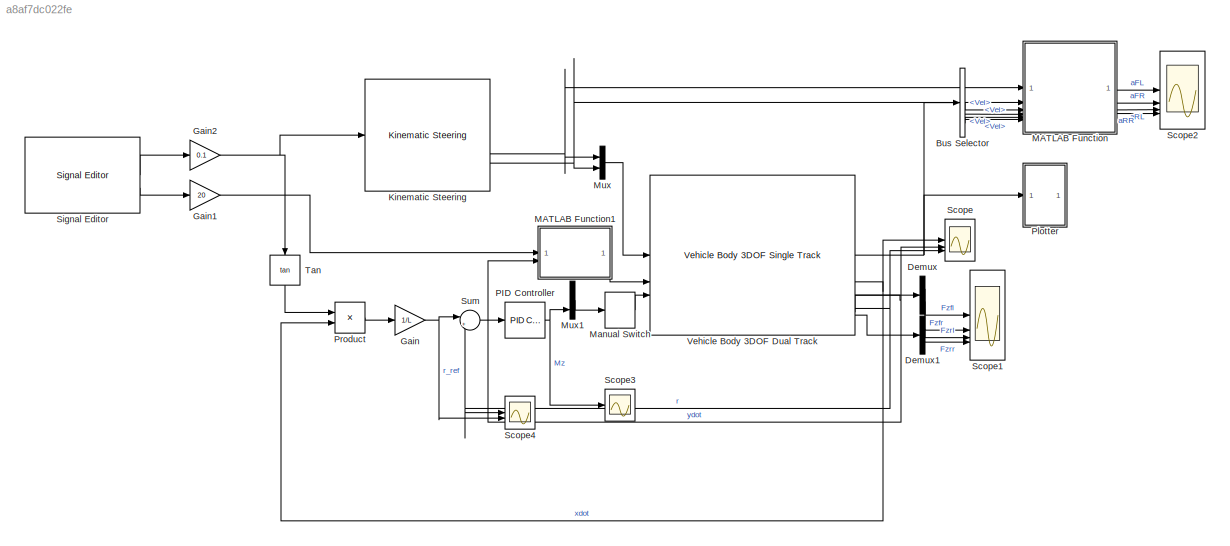
MODEL slx_a8af7dc022fe
KIND model
CONFIG AbsTol = auto
CONFIG EnableMultiTasking = off
CONFIG FixedStep = auto
CONFIG MaxStep = auto
CONFIG MinStep = auto
CONFIG RelTol = 1e-3
CONFIG SampleTimeConstraint = Unconstrained
CONFIG SolverName = VariableStepAuto
CONFIG StartTime = 0.0
CONFIG StopTime = 50
BLOCK [BusSelector] Bus Selector
  OutputSignals = BdyFrm.FrntAxl.Lft.Vel,BdyFrm.FrntAxl.Rght.Vel,BdyFrm.RearAxl.Lft.Vel,BdyFrm.RearAxl.Rght.Vel
BLOCK [Demux] Demux
  Outputs = 2
BLOCK [Demux] Demux1
  Outputs = 2
BLOCK [Gain] Gain
  Gain = 1/L
BLOCK [Gain] Gain1
  Gain = 20
BLOCK [Gain] Gain2
  Gain = 0.1
BLOCK [Reference] Kinematic Steering  REF=vehdynlibsteering/Kinematic Steering
  SourceBlock = vehdynlibsteering/Kinematic Steering
  SourceType = Kinematic Steering
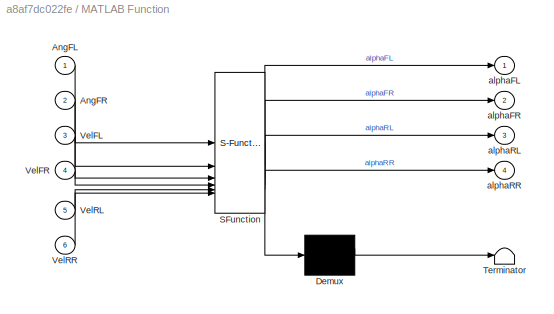
BLOCK [SubSystem] MATLAB Function
  ErrorFcn = Stateflow.Translate.translate
  PermitHierarchicalResolution = ExplicitOnly
  SFBlockType = MATLAB Function
  TreatAsAtomicUnit = on
BLOCK [Demux] MATLAB Function/ Demux 
  Outputs = 1
BLOCK [S-Function] MATLAB Function/ SFunction 
  EnableBusSupport = on
  FunctionName = sf_sfun
  PortCounts = [6 5]
  SFcnIsStateOwnerBlock = off
  SFunctionDeploymentMode = off
  Tag = Stateflow S-Function 2
BLOCK [Terminator] MATLAB Function/ Terminator 
BLOCK [Inport] MATLAB Function/AngFL
BLOCK [Inport] MATLAB Function/AngFR
  Port = 2
BLOCK [Inport] MATLAB Function/VelFL
  Port = 3
BLOCK [Inport] MATLAB Function/VelFR
  Port = 4
BLOCK [Inport] MATLAB Function/VelRL
  Port = 5
BLOCK [Inport] MATLAB Function/VelRR
  Port = 6
BLOCK [Outport] MATLAB Function/alphaFL
BLOCK [Outport] MATLAB Function/alphaFR
  Port = 2
BLOCK [Outport] MATLAB Function/alphaRL
  Port = 3
BLOCK [Outport] MATLAB Function/alphaRR
  Port = 4
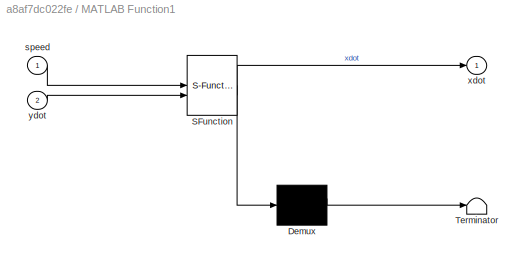
BLOCK [SubSystem] MATLAB Function1
  ErrorFcn = Stateflow.Translate.translate
  PermitHierarchicalResolution = ExplicitOnly
  SFBlockType = MATLAB Function
  TreatAsAtomicUnit = on
BLOCK [Demux] MATLAB Function1/ Demux 
  Outputs = 1
BLOCK [S-Function] MATLAB Function1/ SFunction 
  EnableBusSupport = on
  FunctionName = sf_sfun
  PortCounts = [2 2]
  SFcnIsStateOwnerBlock = off
  SFunctionDeploymentMode = off
  Tag = Stateflow S-Function 1
BLOCK [Terminator] MATLAB Function1/ Terminator 
BLOCK [Inport] MATLAB Function1/speed
BLOCK [Outport] MATLAB Function1/xdot
BLOCK [Inport] MATLAB Function1/ydot
  Port = 2
BLOCK [ManualSwitch] Manual Switch
  CurrentSetting = 0
BLOCK [Mux] Mux
  DisplayOption = bar
  Inputs = 2
BLOCK [Mux] Mux1
  DisplayOption = bar
  Inputs = 3
BLOCK [Reference] PID Controller  REF=slpidlib/PID Controller
  LibrarySourceBlock = simulink/Continuous/PID Controller
  SourceBlock = slpidlib/PID Controller
  SourceType = PID 1dof
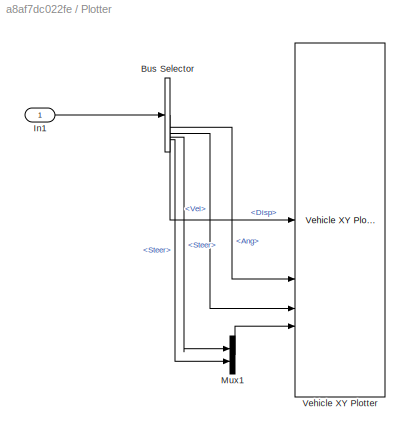
BLOCK [SubSystem] Plotter
BLOCK [BusSelector] Plotter/Bus Selector
  OutputSignals = InertFrm.Cg.Disp,InertFrm.Cg.Ang,InertFrm.Cg.Vel,BdyFrm.FrntAxl.Steer,BdyFrm.RearAxl.Steer
BLOCK [Inport] Plotter/In1
BLOCK [Mux] Plotter/Mux1
  DisplayOption = bar
  Inputs = 2
BLOCK [Reference] Plotter/Vehicle XY Plotter  REF=vehdynlibviscommon/Vehicle XY Plot Configuration
  SourceBlock = vehdynlibviscommon/Vehicle XY Plot Configuration
  SourceType = Vehicle XY Plotter
BLOCK [Product] Product
BLOCK [Scope] Scope
  Floating = off
  NumInputPorts = 3
  ScopeSpecificationString = Simulink.scopes.TimeScopeBlockCfg('CurrentConfiguration', extmgr.ConfigurationSet(extmgr.Configuration('Core','General UI',true),extmgr.Configuration('Core','Source UI',true),extmgr.Configuration('Sources','WiredSimulink',true),extmgr.Configuration('Visuals','Time Domain',true,'SerializedDisplays',{struct('MinYLimReal','-11.54847','MaxYLimReal','23.50539','YLabelReal','','MinYLimMag','0.00000','Ma...<+2119ch>
BLOCK [Scope] Scope1
  Floating = off
  NumInputPorts = 4
  ScopeSpecificationString = Simulink.scopes.TimeScopeBlockCfg('CurrentConfiguration', extmgr.ConfigurationSet(extmgr.Configuration('Core','General UI',true),extmgr.Configuration('Core','Source UI',true),extmgr.Configuration('Sources','WiredSimulink',true,'DataLoggingVariableName','ScopeData1'),extmgr.Configuration('Visuals','Time Domain',true,'SerializedDisplays',{struct('MinYLimReal','737.92798','MaxYLimReal','9087.93117','...<+1929ch>
BLOCK [Scope] Scope2
  Floating = off
  NumInputPorts = 4
  ScopeSpecificationString = Simulink.scopes.TimeScopeBlockCfg('CurrentConfiguration', extmgr.ConfigurationSet(extmgr.Configuration('Core','General UI',true),extmgr.Configuration('Core','Source UI',true),extmgr.Configuration('Sources','WiredSimulink',true,'DataLoggingVariableName','ScopeData2'),extmgr.Configuration('Visuals','Time Domain',true,'SerializedDisplays',{struct('MinYLimReal','-0.59385','MaxYLimReal','0.60154','YLab...<+2235ch>
BLOCK [Scope] Scope3
  Floating = off
  NumInputPorts = 1
  ScopeSpecificationString = Simulink.scopes.TimeScopeBlockCfg('CurrentConfiguration', extmgr.ConfigurationSet(extmgr.Configuration('Core','General UI',true),extmgr.Configuration('Core','Source UI',true),extmgr.Configuration('Sources','WiredSimulink',true,'DataLoggingVariableName','ScopeData1'),extmgr.Configuration('Visuals','Time Domain',true,'SerializedDisplays',{struct('MinYLimReal','-109219.63333','MaxYLimReal','206847.83...<+1837ch>
BLOCK [Scope] Scope4
  Floating = off
  NumInputPorts = 2
  ScopeSpecificationString = Simulink.scopes.TimeScopeBlockCfg('CurrentConfiguration', extmgr.ConfigurationSet(extmgr.Configuration('Core','General UI',true),extmgr.Configuration('Core','Source UI',true),extmgr.Configuration('Sources','WiredSimulink',true,'DataLoggingVariableName','ScopeData2'),extmgr.Configuration('Visuals','Time Domain',true,'SerializedDisplays',{struct('MinYLimReal','-0.82827','MaxYLimReal','0.82875','YLab...<+1640ch>
BLOCK [Reference] Signal Editor  REF=SignalEditorBlockLib/Signal Editor
  LibrarySourceBlock = simulink/Sources/Signal Editor
  SourceBlock = SignalEditorBlockLib/Signal Editor
  SourceType = SignalEditor
  UserDataPersistent = on
BLOCK [Sum] Sum
  Inputs = |+-
BLOCK [Trigonometry] Tan
  NameLocation = left
  Operator = tan
BLOCK [Reference] Vehicle Body 3DOF Dual Track  REF=autolibshared/Vehicle Body 3DOF Single Track
  LibrarySourceBlock = vehdynlibeom/Vehicle Body 3DOF Dual Track
  SourceBlock = autolibshared/Vehicle Body 3DOF Single Track
  SourceType = Vehicle Body 3DOF Lateral
LINE Bus Selector:1 -> MATLAB Function:3
LINE Bus Selector:2 -> MATLAB Function:4
LINE Bus Selector:3 -> MATLAB Function:5
LINE Bus Selector:4 -> MATLAB Function:6
LINE Demux1:1 -> Scope1:3
LINE Demux1:2 -> Scope1:4
LINE Demux:1 -> Scope1:1
LINE Demux:2 -> Scope1:2
LINE Gain1:1 -> MATLAB Function1:1
NET Gain2:1 -> Kinematic Steering:1, Tan:1
NET Gain:1 -> Scope4:2, Sum:1
NET Kinematic Steering:2 -> MATLAB Function:1, Mux:1
NET Kinematic Steering:3 -> MATLAB Function:2, Mux:2
LINE MATLAB Function1:1 -> Vehicle Body 3DOF Dual Track:2
LINE MATLAB Function:1 -> Scope2:1
LINE MATLAB Function:2 -> Scope2:2
LINE MATLAB Function:3 -> Scope2:3
LINE MATLAB Function:4 -> Scope2:4
LINE Manual Switch:1 -> Vehicle Body 3DOF Dual Track:3
LINE Mux1:1 -> Manual Switch:1
LINE Mux:1 -> Vehicle Body 3DOF Dual Track:1
NET PID Controller:1 -> Mux1:3, Scope3:1
LINE Plotter/Bus Selector:1 -> Plotter/Vehicle XY Plotter:1
LINE Plotter/Bus Selector:2 -> Plotter/Vehicle XY Plotter:2
LINE Plotter/Bus Selector:3 -> Plotter/Vehicle XY Plotter:3
LINE Plotter/Bus Selector:4 -> Plotter/Mux1:1
LINE Plotter/Bus Selector:5 -> Plotter/Mux1:2
LINE Plotter/In1:1 -> Plotter/Bus Selector:1
LINE Plotter/Mux1:1 -> Plotter/Vehicle XY Plotter:4
LINE Product:1 -> Gain:1
LINE Signal Editor:1 -> Gain2:1
LINE Signal Editor:2 -> Gain1:1
LINE Sum:1 -> PID Controller:1
LINE Tan:1 -> Product:1
NET Vehicle Body 3DOF Dual Track:1 -> Bus Selector:1, Plotter:1
NET Vehicle Body 3DOF Dual Track:2 -> Product:2, Scope:1
NET Vehicle Body 3DOF Dual Track:3 -> MATLAB Function1:2, Scope:2
NET Vehicle Body 3DOF Dual Track:5 -> Scope4:1, Scope:3, Sum:2
LINE Vehicle Body 3DOF Dual Track:6 -> Demux:1
LINE Vehicle Body 3DOF Dual Track:7 -> Demux1:1
note: NET lines group one-source signal fan-out (src -> all destinations, sorted); 1:1 wires keep LINE
CHART MATLAB Function1 states=1 transitions=1
  STATE_LABEL 'eML_blk_kernel()'
  STATE_LABEL 'SCRIPT:\nfunction xdot  = fcn(speed, ydot)\n\nxdot = sqrt(speed^2 - ydot^2);'
CHART MATLAB Function states=1 transitions=1
  STATE_LABEL 'eML_blk_kernel()'
  STATE_LABEL 'SCRIPT:\nfunction [alphaFL, alphaFR, alphaRL, alphaRR] = fcn(AngFL, AngFR, VelFL, VelFR, VelRL, VelRR)\n\nalphaFL = AngFL - atan(VelFL(2) / VelFL(1));\nalphaFR = AngFR - atan(VelFR(2) / VelFR(1));\nalphaRL = - atan(VelRL(2) / VelRL(1));\nalphaRR = - atan(VelRR(2) / VelRR(1));\n'
CHART  states=0 transitions=0
CHART  states=0 transitions=0
